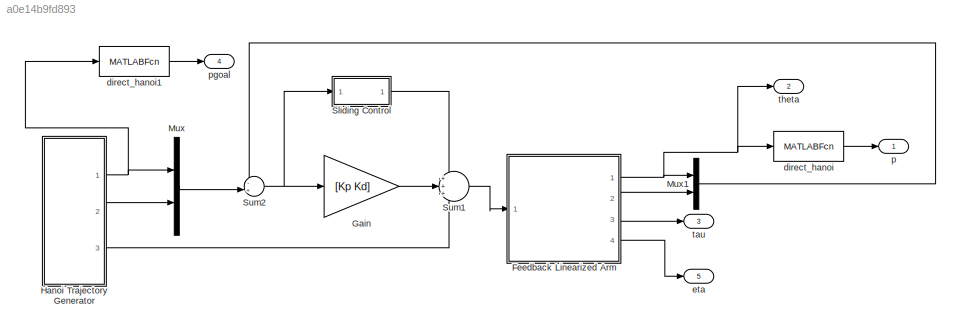
MODEL slx_a0e14b9fd893
KIND model
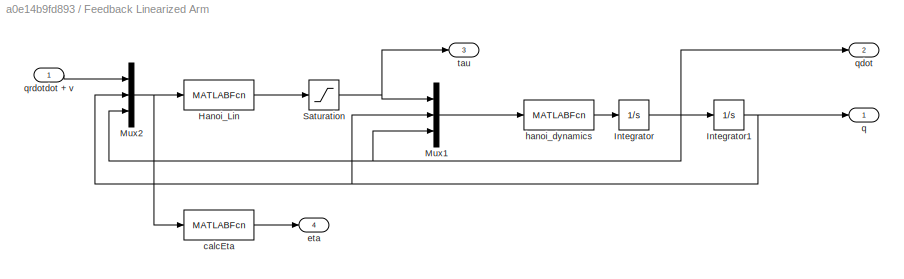
BLOCK [SubSystem] Feedback Linearized Arm
  Ports = [1, 4]
  RequestExecContextInheritance = off
BLOCK [MATLABFcn] Feedback Linearized Arm/Hanoi_Lin
  MATLABFcn = Hanoi_Lin
  Ports = [1, 1]
BLOCK [Integrator] Feedback Linearized Arm/Integrator
  InitialCondition = [0; 0]
  Ports = [1, 1]
BLOCK [Integrator] Feedback Linearized Arm/Integrator1
  InitialCondition = [pi/2; -pi/2]
  Ports = [1, 1]
BLOCK [Mux] Feedback Linearized Arm/Mux1
  DisplayOption = bar
  Inputs = 3
  Ports = [3, 1]
BLOCK [Mux] Feedback Linearized Arm/Mux2
  DisplayOption = bar
  Inputs = 3
  Ports = [3, 1]
BLOCK [Saturate] Feedback Linearized Arm/Saturation
  InputPortMap = u0
  LowerLimit = -3
  Ports = [1, 1]
  UpperLimit = 3
BLOCK [MATLABFcn] Feedback Linearized Arm/calcEta
  MATLABFcn = calcEta
  Ports = [1, 1]
BLOCK [Outport] Feedback Linearized Arm/eta
  IconDisplay = Port number
  Port = 4
BLOCK [MATLABFcn] Feedback Linearized Arm/hanoi_dynamics
  MATLABFcn = hanoi_dynamics
  Ports = [1, 1]
BLOCK [Outport] Feedback Linearized Arm/q
  IconDisplay = Port number
BLOCK [Outport] Feedback Linearized Arm/qdot
  IconDisplay = Port number
  Port = 2
BLOCK [Inport] Feedback Linearized Arm/qrdotdot + v
  IconDisplay = Port number
BLOCK [Outport] Feedback Linearized Arm/tau
  IconDisplay = Port number
  Port = 3
BLOCK [Gain] Gain
  Gain = [Kp Kd]
  Multiplication = Matrix(K*u)
  OutDataTypeStr = Inherit: Inherit via internal rule
  ParamDataTypeStr = Inherit: Inherit via internal rule
  SaturateOnIntegerOverflow = off
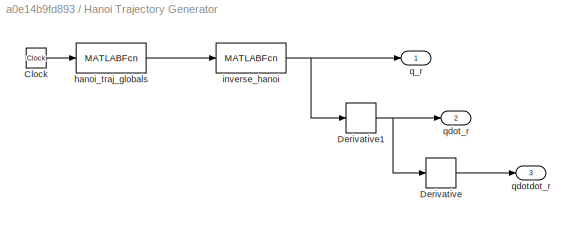
BLOCK [SubSystem] Hanoi Trajectory Generator
  Ports = [0, 3]
  RequestExecContextInheritance = off
BLOCK [Clock] Hanoi Trajectory Generator/Clock
BLOCK [Derivative] Hanoi Trajectory Generator/Derivative
BLOCK [Derivative] Hanoi Trajectory Generator/Derivative1
BLOCK [MATLABFcn] Hanoi Trajectory Generator/hanoi_traj_globals
  MATLABFcn = hanoi_traj_globals
  Ports = [1, 1]
BLOCK [MATLABFcn] Hanoi Trajectory Generator/inverse_hanoi
  MATLABFcn = inverse_hanoi
  Ports = [1, 1]
BLOCK [Outport] Hanoi Trajectory Generator/q_r
  IconDisplay = Port number
BLOCK [Outport] Hanoi Trajectory Generator/qdot_r
  IconDisplay = Port number
  Port = 2
BLOCK [Outport] Hanoi Trajectory Generator/qdotdot_r
  IconDisplay = Port number
  Port = 3
BLOCK [Mux] Mux
  DisplayOption = bar
  Inputs = 2
  Ports = [2, 1]
BLOCK [Mux] Mux1
  DisplayOption = bar
  Inputs = 2
  Ports = [2, 1]
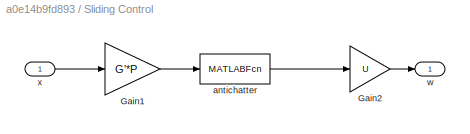
BLOCK [SubSystem] Sliding Control
  Ports = [1, 1]
  RequestExecContextInheritance = off
BLOCK [Gain] Sliding Control/Gain1
  Gain = G'*P
  Multiplication = Matrix(K*u)
  OutDataTypeStr = Inherit: Inherit via internal rule
  ParamDataTypeStr = Inherit: Inherit via internal rule
  SaturateOnIntegerOverflow = off
BLOCK [Gain] Sliding Control/Gain2
  Gain = U
  Multiplication = Matrix(K*u)
  OutDataTypeStr = Inherit: Inherit via internal rule
  ParamDataTypeStr = Inherit: Inherit via internal rule
  SaturateOnIntegerOverflow = off
BLOCK [MATLABFcn] Sliding Control/antichatter
  MATLABFcn = antichatter
  Ports = [1, 1]
BLOCK [Outport] Sliding Control/w
  IconDisplay = Port number
BLOCK [Inport] Sliding Control/x
  IconDisplay = Port number
BLOCK [Sum] Sum1
  IconShape = round
  InputSameDT = off
  Inputs = +++
  OutDataTypeStr = Inherit: Inherit via internal rule
  Ports = [3, 1]
  SaturateOnIntegerOverflow = off
BLOCK [Sum] Sum2
  IconShape = round
  InputSameDT = off
  Inputs = -+|
  OutDataTypeStr = Inherit: Inherit via internal rule
  Ports = [2, 1]
  SaturateOnIntegerOverflow = off
BLOCK [MATLABFcn] direct_hanoi
  MATLABFcn = direct_hanoi
  Ports = [1, 1]
BLOCK [MATLABFcn] direct_hanoi1
  MATLABFcn = direct_hanoi
  Ports = [1, 1]
BLOCK [Outport] eta
  IconDisplay = Port number
  Port = 5
BLOCK [Outport] p
  IconDisplay = Port number
BLOCK [Outport] pgoal
  IconDisplay = Port number
  Port = 4
BLOCK [Outport] tau
  IconDisplay = Port number
  Port = 3
BLOCK [Outport] theta
  IconDisplay = Port number
  Port = 2
LINE Feedback Linearized Arm/Hanoi_Lin:1 -> Feedback Linearized Arm/Saturation:1
NET Feedback Linearized Arm/Integrator1:1 -> Feedback Linearized Arm/Mux1:2, Feedback Linearized Arm/Mux2:2, Feedback Linearized Arm/q:1
NET Feedback Linearized Arm/Integrator:1 -> Feedback Linearized Arm/Integrator1:1, Feedback Linearized Arm/Mux1:3, Feedback Linearized Arm/Mux2:3, Feedback Linearized Arm/qdot:1
LINE Feedback Linearized Arm/Mux1:1 -> Feedback Linearized Arm/hanoi_dynamics:1
NET Feedback Linearized Arm/Mux2:1 -> Feedback Linearized Arm/Hanoi_Lin:1, Feedback Linearized Arm/calcEta:1
NET Feedback Linearized Arm/Saturation:1 -> Feedback Linearized Arm/Mux1:1, Feedback Linearized Arm/tau:1
LINE Feedback Linearized Arm/calcEta:1 -> Feedback Linearized Arm/eta:1
LINE Feedback Linearized Arm/hanoi_dynamics:1 -> Feedback Linearized Arm/Integrator:1
LINE Feedback Linearized Arm/qrdotdot + v:1 -> Feedback Linearized Arm/Mux2:1
NET Feedback Linearized Arm:1 -> Mux1:1, direct_hanoi:1, theta:1
LINE Feedback Linearized Arm:2 -> Mux1:2
LINE Feedback Linearized Arm:3 -> tau:1
LINE Feedback Linearized Arm:4 -> eta:1
LINE Gain:1 -> Sum1:2
LINE Hanoi Trajectory Generator/Clock:1 -> Hanoi Trajectory Generator/hanoi_traj_globals:1
NET Hanoi Trajectory Generator/Derivative1:1 -> Hanoi Trajectory Generator/Derivative:1, Hanoi Trajectory Generator/qdot_r:1
LINE Hanoi Trajectory Generator/Derivative:1 -> Hanoi Trajectory Generator/qdotdot_r:1
LINE Hanoi Trajectory Generator/hanoi_traj_globals:1 -> Hanoi Trajectory Generator/inverse_hanoi:1
NET Hanoi Trajectory Generator/inverse_hanoi:1 -> Hanoi Trajectory Generator/Derivative1:1, Hanoi Trajectory Generator/q_r:1
NET Hanoi Trajectory Generator:1 -> Mux:1, direct_hanoi1:1
LINE Hanoi Trajectory Generator:2 -> Mux:2
LINE Hanoi Trajectory Generator:3 -> Sum1:3
LINE Mux1:1 -> Sum2:1
LINE Mux:1 -> Sum2:2
LINE Sliding Control/Gain1:1 -> Sliding Control/antichatter:1
LINE Sliding Control/Gain2:1 -> Sliding Control/w:1
LINE Sliding Control/antichatter:1 -> Sliding Control/Gain2:1
LINE Sliding Control/x:1 -> Sliding Control/Gain1:1
LINE Sliding Control:1 -> Sum1:1
LINE Sum1:1 -> Feedback Linearized Arm:1
NET Sum2:1 -> Gain:1, Sliding Control:1
LINE direct_hanoi1:1 -> pgoal:1
LINE direct_hanoi:1 -> p:1
note: NET lines group one-source signal fan-out (src -> all destinations, sorted); 1:1 wires keep LINE
